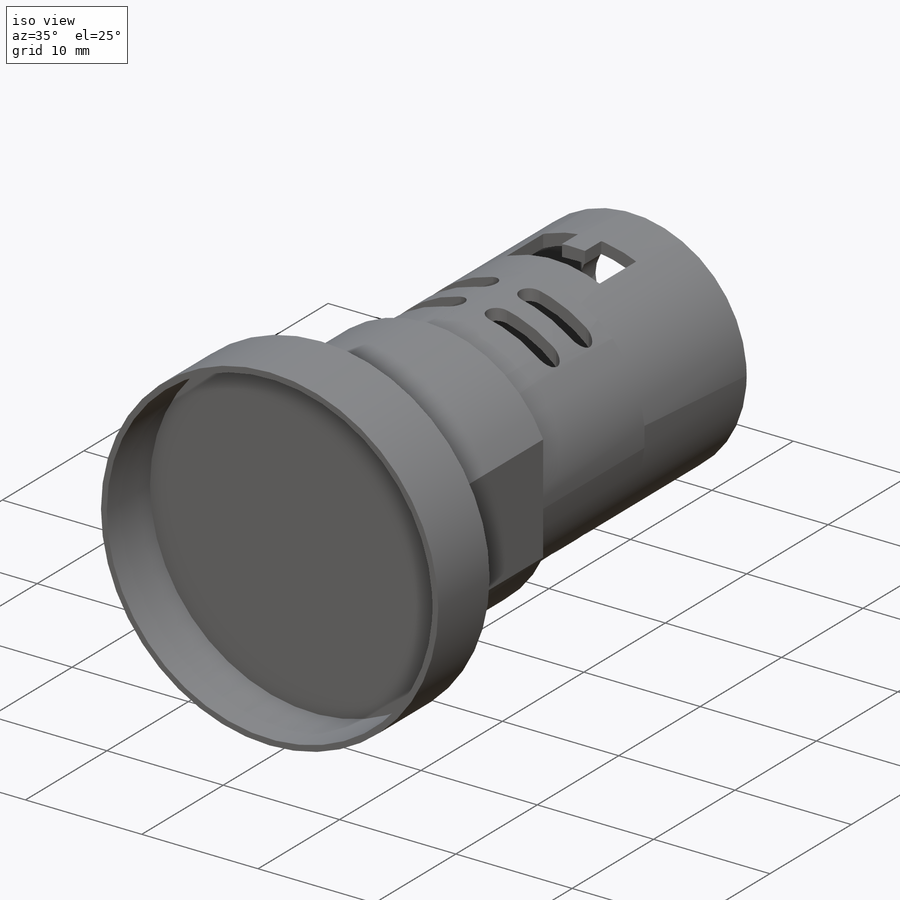
[diagram: iso view]
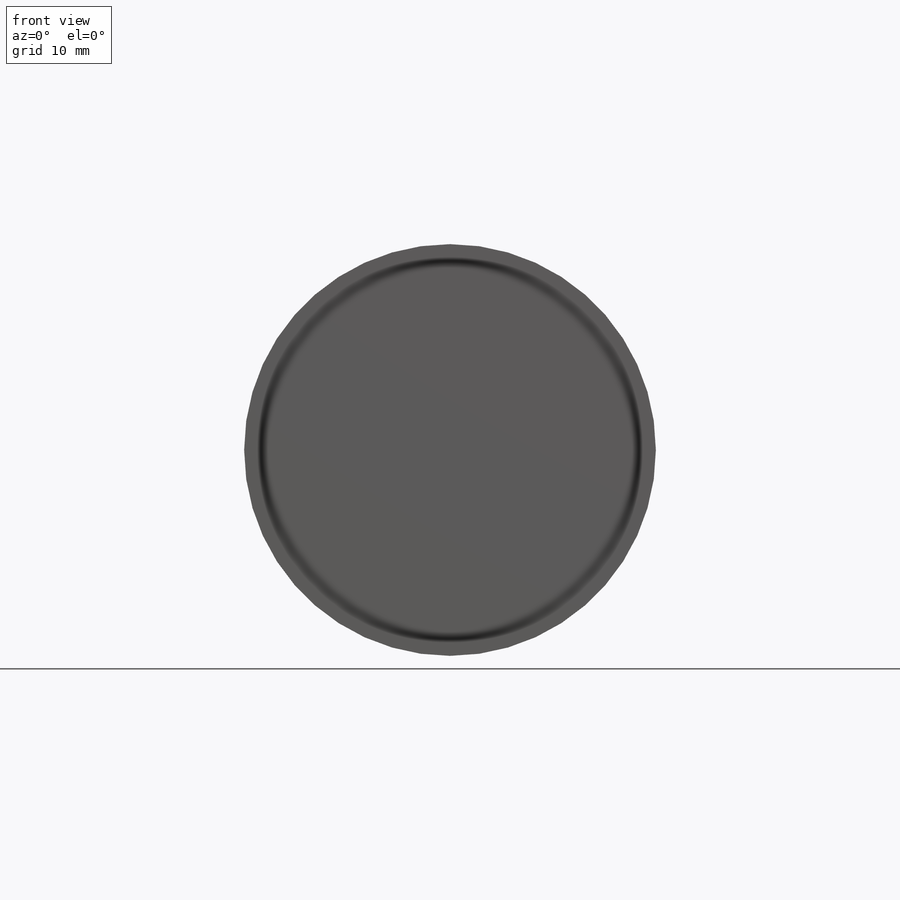
[diagram: front view]
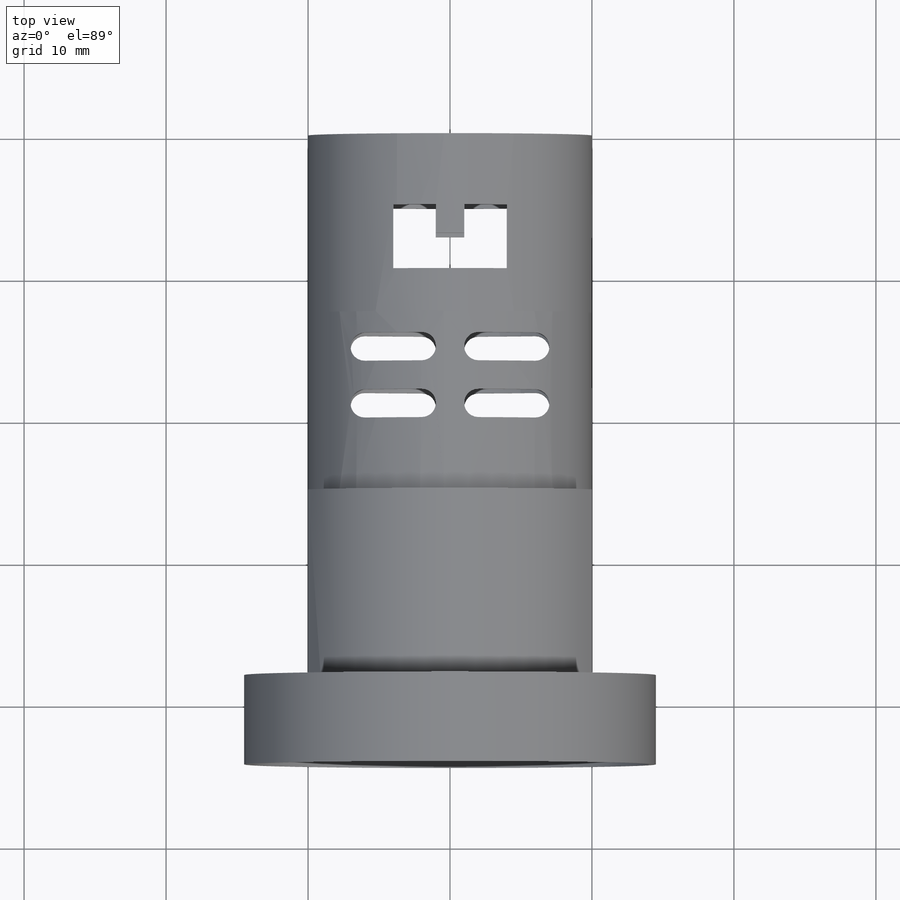
[diagram: top view]
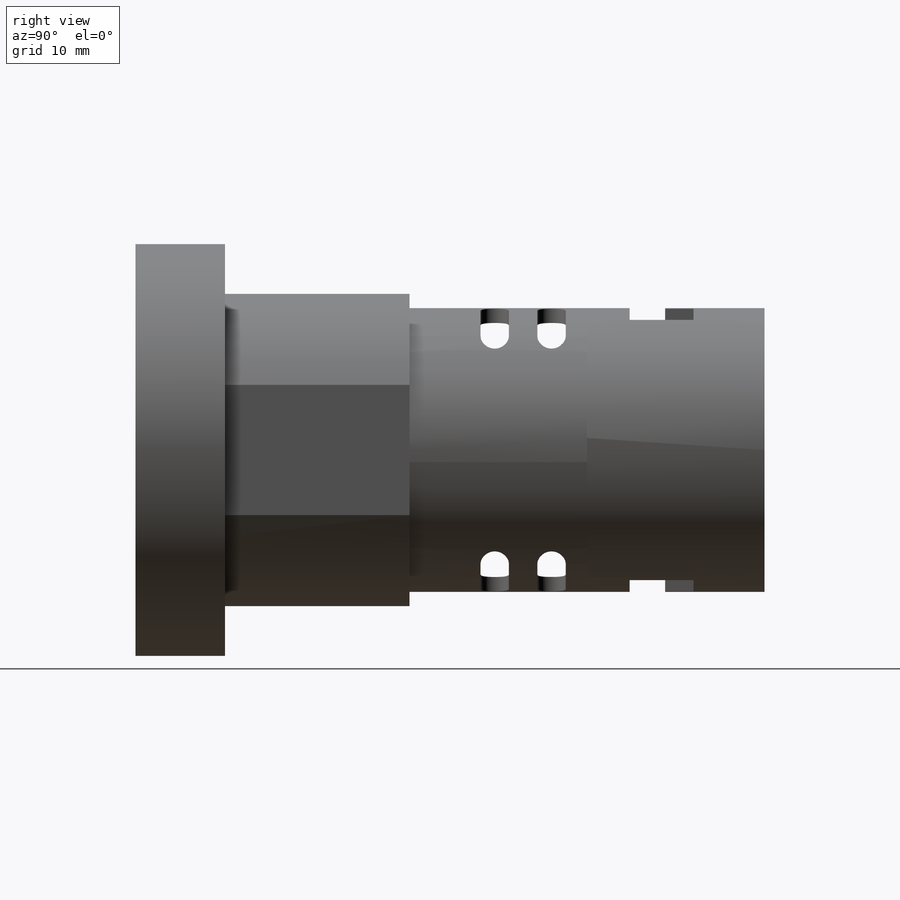
[diagram: right view]
SOLIDWORKS PART (.sldprt)
format: sldprt  version: not decoded by parser v0  size: 652,288 bytes
history: native  units: mm
features: sketch x8, extrude x4, cut_extrude x4, material x1, plane x1 (+13 scaffold rows collapsed)
feature tree (31):
  scaffold x13  (default folders/planes/origin — collapsed)
  material  "Material <not specified>"
  sketch  "Sketch1"  dims[D1=20.0mm]
  extrude  "Boss-Extrude1"  Depth=38mm
  sketch  "Sketch2"  dims[D1=29.0mm D2=28.0mm]
  extrude  "Boss-Extrude2"  Depth=1mm
  sketch  "Sketch3"  dims[D1=28.0mm D2=29.0mm]
  extrude  "Boss-Extrude3"  Depth=5.3mm
  sketch  "Sketch4"  dims[D1=22.0mm]
  extrude  "Boss-Extrude4"  Depth=13mm
  sketch  "Sketch6"  dims[D1=6.0mm D2=9.0mm D3=4.5mm]
  cut_extrude  "Cut-Extrude2"  Depth=9mm
  sketch  "Sketch7"  dims[c1.D6=2.0mm c1.D7=2.0mm c1.D10=1.0mm c1.D1=4.0mm c1.D2=5.0mm c1.D3=2.0mm c2.D1=4.0mm c2.D3=1.0mm c2.D4=2.0mm c2.D5=4.5mm c2.D8=4.0mm c2.D9=2.0mm c2.D10=~5.063299mm c2.D11=12.0mm c3.D10=5.5mm c3.D11=2.0mm]
  cut_extrude  "Cut-Extrude3"  [1 undecoded]
  plane  "Plane2"
  sketch  "Sketch8"  dims[D1=18.0mm]
  cut_extrude  "Cut-Extrude4"  Depth=17mm
  sketch  "Sketch5"  dims[D1=20.0mm D2=20.0mm D3=5.0mm D4=5.0mm]
  cut_extrude  "Cut-Extrude1"  [1 undecoded]
decode coverage: 14 of 16 modeling features carry decoded parameters
note: ~ marks probable driven/reference dimensions
note: 2 parameter values undecoded
note: suppression state not decoded; provenance and decode notes live in map.json
